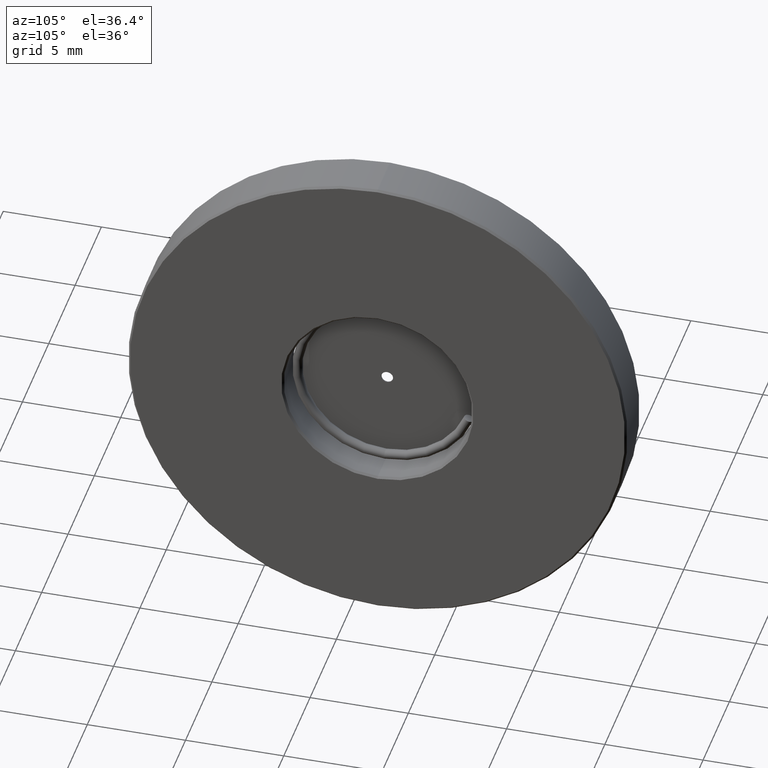
[diagram: clean part render]
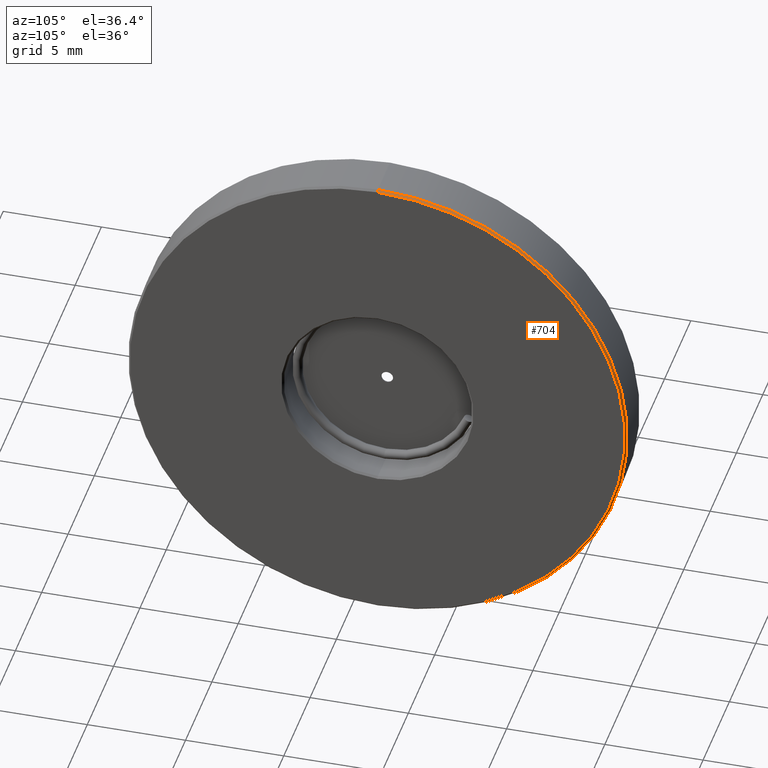
[diagram: same view with one face highlighted and labeled with its STEP entity id]
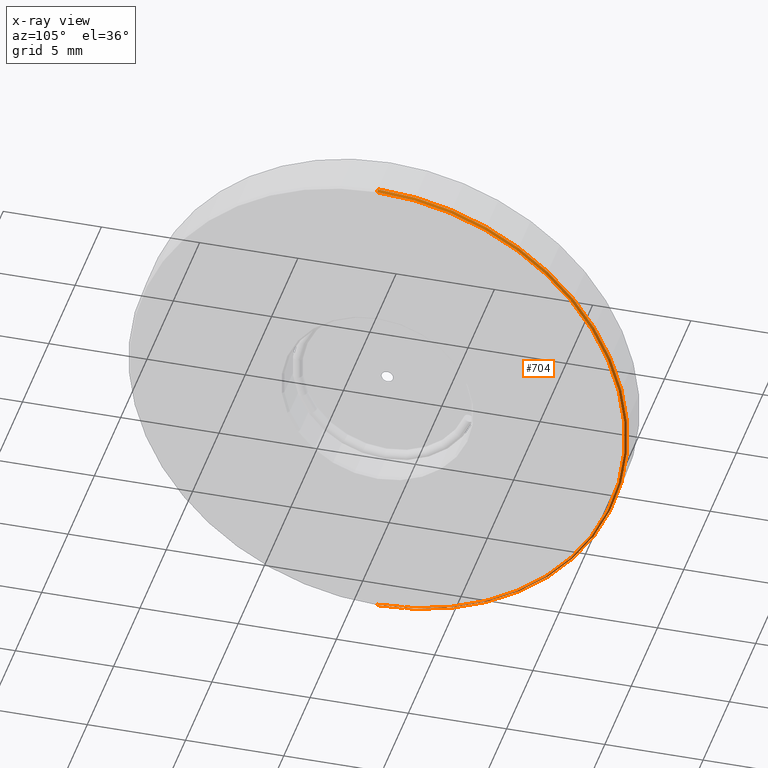
[diagram: x-ray of the same camera — body ghosted, the highlighted face saturated]
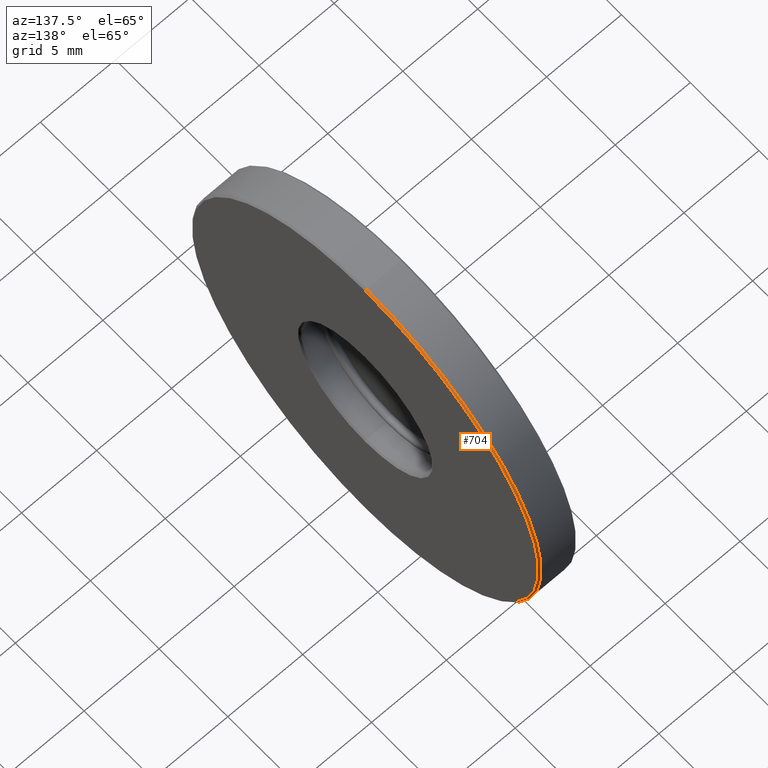
[diagram: same view with one face highlighted and labeled with its STEP entity id]
A machine part, auxiliary view. The second image highlights one B-rep face of the part: STEP entity #704.
The next image is the same camera in x-ray: the body ghosted, the highlighted face saturated — about 0% of this face is hidden behind the body in this view.
A second angle (auxiliary view) of the same face is appended — the face is thin or edge-on in the first view.
In plain terms, the highlighted conical surface has half-angle 45 deg.
Its self-contained STEP definition (entity closure, byte-faithful):
#3 = DIRECTION ( 'NONE',  ( 0.0000000000000000000, 0.0000000000000000000, -1.000000000000000000 ) ) ;
#42 = VERTEX_POINT ( 'NONE', #732 ) ;
#45 = VERTEX_POINT ( 'NONE', #149 ) ;
#130 = CARTESIAN_POINT ( 'NONE',  ( -2.534863851253199574, 1.436758841085141070, 25.39999999999999858 ) ) ;
#131 = EDGE_CURVE ( 'NONE', #45, #42, #221, .T. ) ;
#140 = EDGE_CURVE ( 'NONE', #45, #280, #683, .T. ) ;
#146 = VERTEX_POINT ( 'NONE', #299 ) ;
#149 = CARTESIAN_POINT ( 'NONE',  ( -2.434863851253203482, 1.436758841085142402, 12.79999999999999716 ) ) ;
#167 = AXIS2_PLACEMENT_3D ( 'NONE', #295, #806, #415 ) ;
#177 = DIRECTION ( 'NONE',  ( -1.000000000000000000, 0.0000000000000000000, 0.0000000000000000000 ) ) ;
#186 = DIRECTION ( 'NONE',  ( -0.7071067811865414665, 0.0000000000000000000, 0.7071067811865536790 ) ) ;
#200 = ORIENTED_EDGE ( 'NONE', *, *, #793, .F. ) ;
#207 = ORIENTED_EDGE ( 'NONE', *, *, #257, .F. ) ;
#221 = LINE ( 'NONE', #362, #551 ) ;
#229 = DIRECTION ( 'NONE',  ( -0.7071067811865414665, 8.659560562355008046E-17, -0.7071067811865536790 ) ) ;
#257 = EDGE_CURVE ( 'NONE', #280, #146, #667, .T. ) ;
#280 = VERTEX_POINT ( 'NONE', #562 ) ;
#295 = CARTESIAN_POINT ( 'NONE',  ( -2.434863851253203482, 1.436758841085141070, 25.39999999999999858 ) ) ;
#299 = CARTESIAN_POINT ( 'NONE',  ( -2.534863851253199574, 1.436758841085141070, 38.09999999999999432 ) ) ;
#305 = CARTESIAN_POINT ( 'NONE',  ( -2.434863851253203482, 1.436758841085141070, 38.00000000000000000 ) ) ;
#344 = AXIS2_PLACEMENT_3D ( 'NONE', #766, #177, #687 ) ;
#362 = CARTESIAN_POINT ( 'NONE',  ( -2.434863851253203482, 1.436758841085142402, 12.79999999999999716 ) ) ;
#415 = DIRECTION ( 'NONE',  ( 0.0000000000000000000, 0.0000000000000000000, -1.000000000000000000 ) ) ;
#486 = CONICAL_SURFACE ( 'NONE', #344, 12.59999999999999964, 0.7853981633974569387 ) ;
#512 = ORIENTED_EDGE ( 'NONE', *, *, #131, .T. ) ;
#527 = AXIS2_PLACEMENT_3D ( 'NONE', #130, #578, #3 ) ;
#551 = VECTOR ( 'NONE', #229, 1000.000000000000000 ) ;
#561 = ORIENTED_EDGE ( 'NONE', *, *, #140, .F. ) ;
#562 = CARTESIAN_POINT ( 'NONE',  ( -2.434863851253203482, 1.436758841085141070, 38.00000000000000711 ) ) ;
#578 = DIRECTION ( 'NONE',  ( -1.000000000000000000, 0.0000000000000000000, 0.0000000000000000000 ) ) ;
#614 = EDGE_LOOP ( 'NONE', ( #561, #512, #200, #207 ) ) ;
#615 = CIRCLE ( 'NONE', #527, 12.69999999999999929 ) ;
#655 = FACE_OUTER_BOUND ( 'NONE', #614, .T. ) ;
#667 = LINE ( 'NONE', #305, #717 ) ;
#683 = CIRCLE ( 'NONE', #167, 12.60000000000000142 ) ;
#687 = DIRECTION ( 'NONE',  ( 0.0000000000000000000, 0.0000000000000000000, 1.000000000000000000 ) ) ;
#704 = ADVANCED_FACE ( 'NONE', ( #655 ), #486, .T. ) ;
#717 = VECTOR ( 'NONE', #186, 1000.000000000000000 ) ;
#732 = CARTESIAN_POINT ( 'NONE',  ( -2.534863851253199574, 1.436758841085142402, 12.69999999999999929 ) ) ;
#766 = CARTESIAN_POINT ( 'NONE',  ( -2.434863851253203482, 1.436758841085141070, 25.39999999999999858 ) ) ;
#793 = EDGE_CURVE ( 'NONE', #146, #42, #615, .T. ) ;
#806 = DIRECTION ( 'NONE',  ( 1.000000000000000000, 0.0000000000000000000, 0.0000000000000000000 ) ) ;